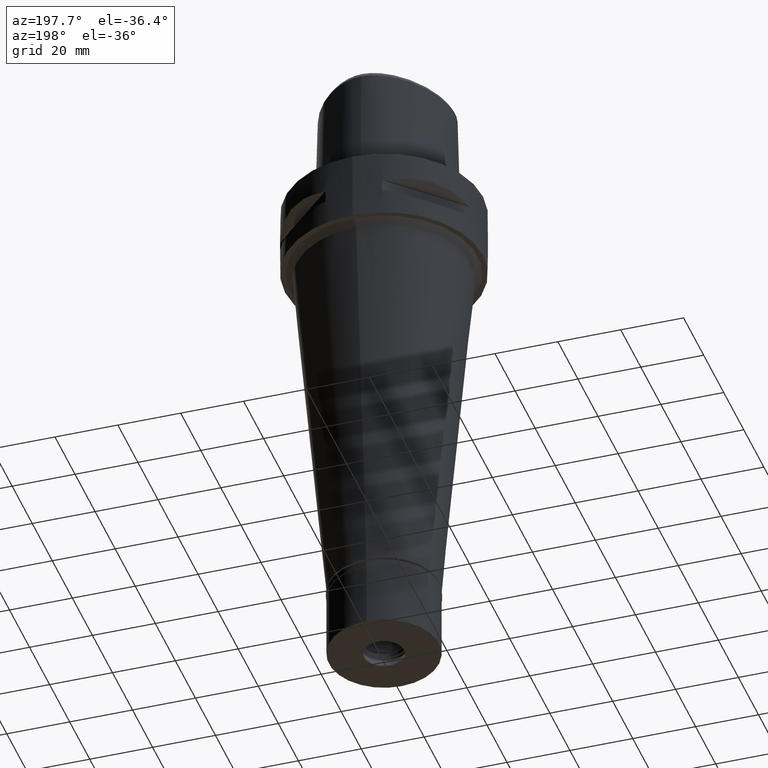
[diagram: clean part render]
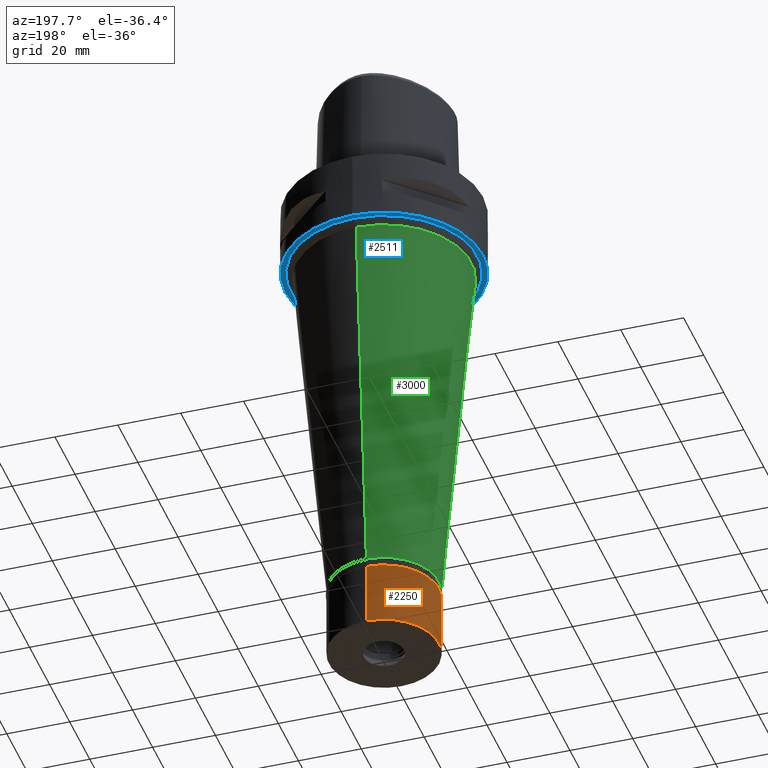
[diagram: same view with three faces highlighted in distinct colors, each labeled with its STEP entity id]
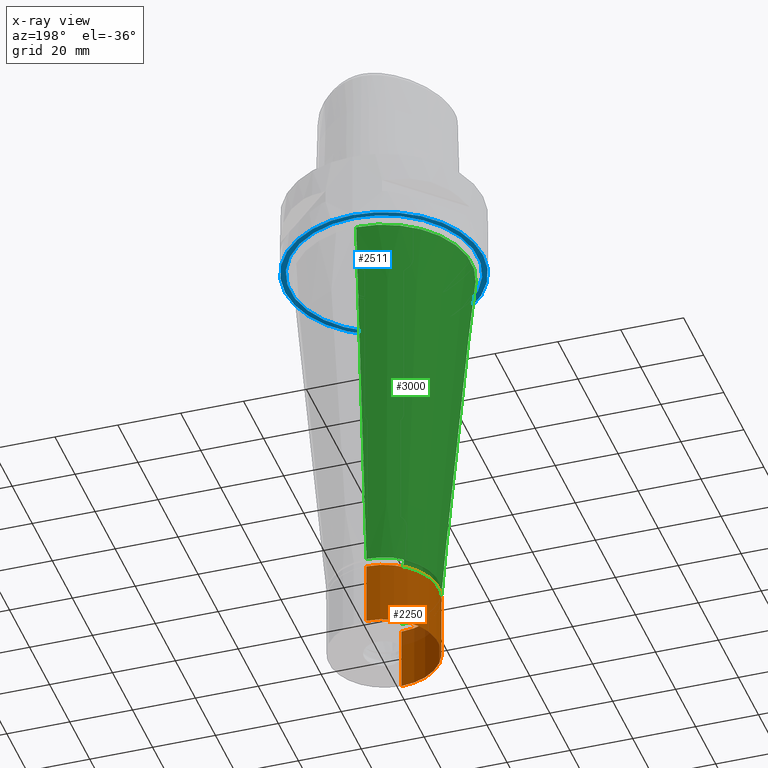
[diagram: x-ray of the same camera — body ghosted, the three highlighted faces saturated]
A machine part, auxiliary view with three faces highlighted in distinct colors.
The next image is the same camera in x-ray (body ghosted, the three faces saturated) — at least one of them is partly hidden behind the body in this view.
Their STEP definitions:

[orange] entity #2250 — the highlighted cylindrical surface (partial cylindrical patch) has radius 17.5 mm, axis along (0, 0, -1).
#90 = VECTOR ( 'NONE', #2454, 1000.000000000000000 ) ;
#117 = LINE ( 'NONE', #1277, #90 ) ;
#199 = ORIENTED_EDGE ( 'NONE', *, *, #3880, .T. ) ;
#216 = LINE ( 'NONE', #684, #4734 ) ;
#502 = CIRCLE ( 'NONE', #4437, 17.50000000000000000 ) ;
#553 = CARTESIAN_POINT ( 'NONE',  ( 0.0000000000000000000, 0.0000000000000000000, 0.0000000000000000000 ) ) ;
#606 = CYLINDRICAL_SURFACE ( 'NONE', #3449, 17.50000000000000000 ) ;
#621 = VERTEX_POINT ( 'NONE', #3673 ) ;
#684 = CARTESIAN_POINT ( 'NONE',  ( 0.0000000000000000000, 17.50000000000000000, -2.000000000000000000 ) ) ;
#879 = VERTEX_POINT ( 'NONE', #3323 ) ;
#919 = CARTESIAN_POINT ( 'NONE',  ( 0.0000000000000000000, 17.50000000000000000, -2.000000000000000000 ) ) ;
#1128 = EDGE_CURVE ( 'NONE', #3904, #621, #216, .T. ) ;
#1166 = EDGE_LOOP ( 'NONE', ( #1195, #4952, #199, #2272 ) ) ;
#1195 = ORIENTED_EDGE ( 'NONE', *, *, #2775, .T. ) ;
#1231 = DIRECTION ( 'NONE',  ( 0.0000000000000000000, 0.0000000000000000000, 1.000000000000000000 ) ) ;
#1277 = CARTESIAN_POINT ( 'NONE',  ( 0.0000000000000000000, -17.50000000000000000, -2.000000000000000000 ) ) ;
#1726 = AXIS2_PLACEMENT_3D ( 'NONE', #3133, #1231, #2411 ) ;
#1761 = DIRECTION ( 'NONE',  ( 0.0000000000000000000, -1.000000000000000000, 0.0000000000000000000 ) ) ;
#1785 = DIRECTION ( 'NONE',  ( 0.0000000000000000000, 0.0000000000000000000, -1.000000000000000000 ) ) ;
#2067 = VERTEX_POINT ( 'NONE', #4446 ) ;
#2250 = ADVANCED_FACE ( 'NONE', ( #2962 ), #606, .T. ) ;
#2272 = ORIENTED_EDGE ( 'NONE', *, *, #1128, .T. ) ;
#2411 = DIRECTION ( 'NONE',  ( 0.0000000000000000000, 1.000000000000000000, 0.0000000000000000000 ) ) ;
#2454 = DIRECTION ( 'NONE',  ( 0.0000000000000000000, 0.0000000000000000000, -1.000000000000000000 ) ) ;
#2775 = EDGE_CURVE ( 'NONE', #621, #879, #3946, .T. ) ;
#2915 = DIRECTION ( 'NONE',  ( 0.0000000000000000000, 0.0000000000000000000, -1.000000000000000000 ) ) ;
#2962 = FACE_OUTER_BOUND ( 'NONE', #1166, .T. ) ;
#3133 = CARTESIAN_POINT ( 'NONE',  ( 0.0000000000000000000, 0.0000000000000000000, -22.50000000000000000 ) ) ;
#3248 = DIRECTION ( 'NONE',  ( 0.0000000000000000000, -1.000000000000000000, 0.0000000000000000000 ) ) ;
#3323 = CARTESIAN_POINT ( 'NONE',  ( 0.0000000000000000000, -17.50000000000000000, -22.50000000000000000 ) ) ;
#3413 = EDGE_CURVE ( 'NONE', #2067, #879, #117, .T. ) ;
#3449 = AXIS2_PLACEMENT_3D ( 'NONE', #553, #1785, #1761 ) ;
#3673 = CARTESIAN_POINT ( 'NONE',  ( 0.0000000000000000000, 17.50000000000000000, -22.50000000000000000 ) ) ;
#3687 = CARTESIAN_POINT ( 'NONE',  ( 0.0000000000000000000, 0.0000000000000000000, -2.000000000000000000 ) ) ;
#3819 = DIRECTION ( 'NONE',  ( 0.0000000000000000000, 0.0000000000000000000, -1.000000000000000000 ) ) ;
#3880 = EDGE_CURVE ( 'NONE', #2067, #3904, #502, .T. ) ;
#3904 = VERTEX_POINT ( 'NONE', #919 ) ;
#3946 = CIRCLE ( 'NONE', #1726, 17.50000000000000000 ) ;
#4437 = AXIS2_PLACEMENT_3D ( 'NONE', #3687, #2915, #3248 ) ;
#4446 = CARTESIAN_POINT ( 'NONE',  ( 0.0000000000000000000, -17.50000000000000000, -2.000000000000000000 ) ) ;
#4734 = VECTOR ( 'NONE', #3819, 1000.000000000000000 ) ;
#4952 = ORIENTED_EDGE ( 'NONE', *, *, #3413, .F. ) ;

[blue] entity #2511 — the highlighted planar face has unit normal (0, 0, -1).
#6 = AXIS2_PLACEMENT_3D ( 'NONE', #3271, #158, #4145 ) ;
#158 = DIRECTION ( 'NONE',  ( 0.0000000000000000000, 0.0000000000000000000, -1.000000000000000000 ) ) ;
#210 = FACE_BOUND ( 'NONE', #2037, .T. ) ;
#220 = ORIENTED_EDGE ( 'NONE', *, *, #4333, .F. ) ;
#797 = CARTESIAN_POINT ( 'NONE',  ( 0.0000000000000000000, -31.50000000000000000, -22.00000000000000000 ) ) ;
#805 = ORIENTED_EDGE ( 'NONE', *, *, #3759, .F. ) ;
#812 = CARTESIAN_POINT ( 'NONE',  ( 0.0000000000000000000, -29.79741569699999815, -22.00000000000000000 ) ) ;
#893 = VERTEX_POINT ( 'NONE', #1698 ) ;
#939 = EDGE_CURVE ( 'NONE', #893, #2835, #1390, .T. ) ;
#1074 = AXIS2_PLACEMENT_3D ( 'NONE', #4875, #4795, #2476 ) ;
#1109 = VERTEX_POINT ( 'NONE', #1431 ) ;
#1350 = PLANE ( 'NONE',  #6 ) ;
#1390 = CIRCLE ( 'NONE', #1074, 31.50000000000000000 ) ;
#1398 = AXIS2_PLACEMENT_3D ( 'NONE', #4153, #3328, #2918 ) ;
#1431 = CARTESIAN_POINT ( 'NONE',  ( 0.0000000000000000000, 29.79741569699999815, -22.00000000000000000 ) ) ;
#1555 = CIRCLE ( 'NONE', #1398, 29.79741569699999815 ) ;
#1698 = CARTESIAN_POINT ( 'NONE',  ( 0.0000000000000000000, 31.50000000000000000, -22.00000000000000000 ) ) ;
#1836 = ORIENTED_EDGE ( 'NONE', *, *, #2277, .F. ) ;
#2037 = EDGE_LOOP ( 'NONE', ( #1836, #805 ) ) ;
#2151 = CIRCLE ( 'NONE', #3545, 31.50000000000000000 ) ;
#2277 = EDGE_CURVE ( 'NONE', #1109, #3607, #1555, .T. ) ;
#2476 = DIRECTION ( 'NONE',  ( 0.0000000000000000000, 1.000000000000000000, 0.0000000000000000000 ) ) ;
#2511 = ADVANCED_FACE ( 'NONE', ( #4068, #210 ), #1350, .T. ) ;
#2835 = VERTEX_POINT ( 'NONE', #797 ) ;
#2918 = DIRECTION ( 'NONE',  ( 0.0000000000000000000, 1.000000000000000000, 0.0000000000000000000 ) ) ;
#2936 = ORIENTED_EDGE ( 'NONE', *, *, #939, .F. ) ;
#3088 = DIRECTION ( 'NONE',  ( 0.0000000000000000000, 0.0000000000000000000, 1.000000000000000000 ) ) ;
#3142 = CARTESIAN_POINT ( 'NONE',  ( 0.0000000000000000000, 0.0000000000000000000, -22.00000000000000000 ) ) ;
#3183 = EDGE_LOOP ( 'NONE', ( #2936, #220 ) ) ;
#3271 = CARTESIAN_POINT ( 'NONE',  ( 0.0000000000000000000, 0.0000000000000000000, -22.00000000000000000 ) ) ;
#3304 = DIRECTION ( 'NONE',  ( 0.0000000000000000000, -1.000000000000000000, 0.0000000000000000000 ) ) ;
#3328 = DIRECTION ( 'NONE',  ( 0.0000000000000000000, 0.0000000000000000000, -1.000000000000000000 ) ) ;
#3545 = AXIS2_PLACEMENT_3D ( 'NONE', #3142, #3088, #4696 ) ;
#3607 = VERTEX_POINT ( 'NONE', #812 ) ;
#3759 = EDGE_CURVE ( 'NONE', #3607, #1109, #4839, .T. ) ;
#3868 = AXIS2_PLACEMENT_3D ( 'NONE', #4420, #4823, #3304 ) ;
#4068 = FACE_OUTER_BOUND ( 'NONE', #3183, .T. ) ;
#4145 = DIRECTION ( 'NONE',  ( 0.0000000000000000000, -1.000000000000000000, 0.0000000000000000000 ) ) ;
#4153 = CARTESIAN_POINT ( 'NONE',  ( 0.0000000000000000000, 0.0000000000000000000, -22.00000000000000000 ) ) ;
#4333 = EDGE_CURVE ( 'NONE', #2835, #893, #2151, .T. ) ;
#4420 = CARTESIAN_POINT ( 'NONE',  ( 0.0000000000000000000, 0.0000000000000000000, -22.00000000000000000 ) ) ;
#4696 = DIRECTION ( 'NONE',  ( 0.0000000000000000000, -1.000000000000000000, 0.0000000000000000000 ) ) ;
#4795 = DIRECTION ( 'NONE',  ( 0.0000000000000000000, 0.0000000000000000000, 1.000000000000000000 ) ) ;
#4823 = DIRECTION ( 'NONE',  ( 0.0000000000000000000, 0.0000000000000000000, -1.000000000000000000 ) ) ;
#4839 = CIRCLE ( 'NONE', #3868, 29.79741569699999815 ) ;
#4875 = CARTESIAN_POINT ( 'NONE',  ( 0.0000000000000000000, 0.0000000000000000000, -22.00000000000000000 ) ) ;

[green] entity #3000 — the highlighted conical surface has half-angle 5 deg.
#341 = DIRECTION ( 'NONE',  ( 0.0000000000000000000, -1.000000000000000000, 0.0000000000000000000 ) ) ;
#378 = ORIENTED_EDGE ( 'NONE', *, *, #2073, .T. ) ;
#511 = CARTESIAN_POINT ( 'NONE',  ( 0.0000000000000000000, -1.014619873093999966E-14, -82.84999999999999432 ) ) ;
#611 = EDGE_LOOP ( 'NONE', ( #378, #4528, #4576, #4777 ) ) ;
#639 = LINE ( 'NONE', #3003, #4022 ) ;
#862 = DIRECTION ( 'NONE',  ( 0.0000000000000000000, 1.000000000000000000, 0.0000000000000000000 ) ) ;
#871 = VERTEX_POINT ( 'NONE', #3245 ) ;
#1004 = CONICAL_SURFACE ( 'NONE', #2549, 22.64870784849999907, 0.08726646259969973729 ) ;
#1175 = DIRECTION ( 'NONE',  ( 0.0000000000000000000, 0.0000000000000000000, -1.000000000000000000 ) ) ;
#1284 = FACE_OUTER_BOUND ( 'NONE', #611, .T. ) ;
#1459 = EDGE_CURVE ( 'NONE', #871, #4318, #2292, .T. ) ;
#1631 = AXIS2_PLACEMENT_3D ( 'NONE', #2729, #1175, #341 ) ;
#1653 = CARTESIAN_POINT ( 'NONE',  ( 0.0000000000000000000, -17.50000000000000000, -141.6999999999999886 ) ) ;
#1697 = DIRECTION ( 'NONE',  ( 0.0000000000000000000, 0.0000000000000000000, 1.000000000000000000 ) ) ;
#1725 = CARTESIAN_POINT ( 'NONE',  ( 0.0000000000000000000, -1.014619873093999966E-14, -141.6999999999999886 ) ) ;
#1918 = EDGE_CURVE ( 'NONE', #871, #4630, #3278, .T. ) ;
#2073 = EDGE_CURVE ( 'NONE', #3833, #4630, #3200, .T. ) ;
#2125 = DIRECTION ( 'NONE',  ( 0.0000000000000000000, 0.0000000000000000000, 1.000000000000000000 ) ) ;
#2292 = CIRCLE ( 'NONE', #1631, 27.79741569699999815 ) ;
#2549 = AXIS2_PLACEMENT_3D ( 'NONE', #511, #2125, #3315 ) ;
#2689 = EDGE_CURVE ( 'NONE', #4318, #3833, #639, .T. ) ;
#2704 = AXIS2_PLACEMENT_3D ( 'NONE', #1725, #1697, #862 ) ;
#2723 = CARTESIAN_POINT ( 'NONE',  ( 0.0000000000000000000, 27.79741569699999815, -24.00000000000000000 ) ) ;
#2729 = CARTESIAN_POINT ( 'NONE',  ( 0.0000000000000000000, 0.0000000000000000000, -24.00000000000000000 ) ) ;
#3000 = ADVANCED_FACE ( 'NONE', ( #1284 ), #1004, .T. ) ;
#3003 = CARTESIAN_POINT ( 'NONE',  ( 0.0000000000000000000, 27.79741569699999815, -24.00000000000000000 ) ) ;
#3200 = CIRCLE ( 'NONE', #2704, 17.50000000000000000 ) ;
#3245 = CARTESIAN_POINT ( 'NONE',  ( 0.0000000000000000000, -27.79741569699999815, -24.00000000000000000 ) ) ;
#3278 = LINE ( 'NONE', #4048, #3445 ) ;
#3315 = DIRECTION ( 'NONE',  ( 0.0000000000000000000, 1.000000000000000000, 0.0000000000000000000 ) ) ;
#3420 = DIRECTION ( 'NONE',  ( 0.0000000000000000000, -0.08715574274765398866, -0.9961946980917458783 ) ) ;
#3445 = VECTOR ( 'NONE', #4826, 1000.000000000000000 ) ;
#3833 = VERTEX_POINT ( 'NONE', #4877 ) ;
#4022 = VECTOR ( 'NONE', #3420, 1000.000000000000000 ) ;
#4048 = CARTESIAN_POINT ( 'NONE',  ( 0.0000000000000000000, -27.79741569699999815, -24.00000000000000000 ) ) ;
#4318 = VERTEX_POINT ( 'NONE', #2723 ) ;
#4528 = ORIENTED_EDGE ( 'NONE', *, *, #1918, .F. ) ;
#4576 = ORIENTED_EDGE ( 'NONE', *, *, #1459, .T. ) ;
#4630 = VERTEX_POINT ( 'NONE', #1653 ) ;
#4777 = ORIENTED_EDGE ( 'NONE', *, *, #2689, .T. ) ;
#4826 = DIRECTION ( 'NONE',  ( 0.0000000000000000000, 0.08715574274765398866, -0.9961946980917458783 ) ) ;
#4877 = CARTESIAN_POINT ( 'NONE',  ( 0.0000000000000000000, 17.50000000000000000, -141.6999999999999886 ) ) ;